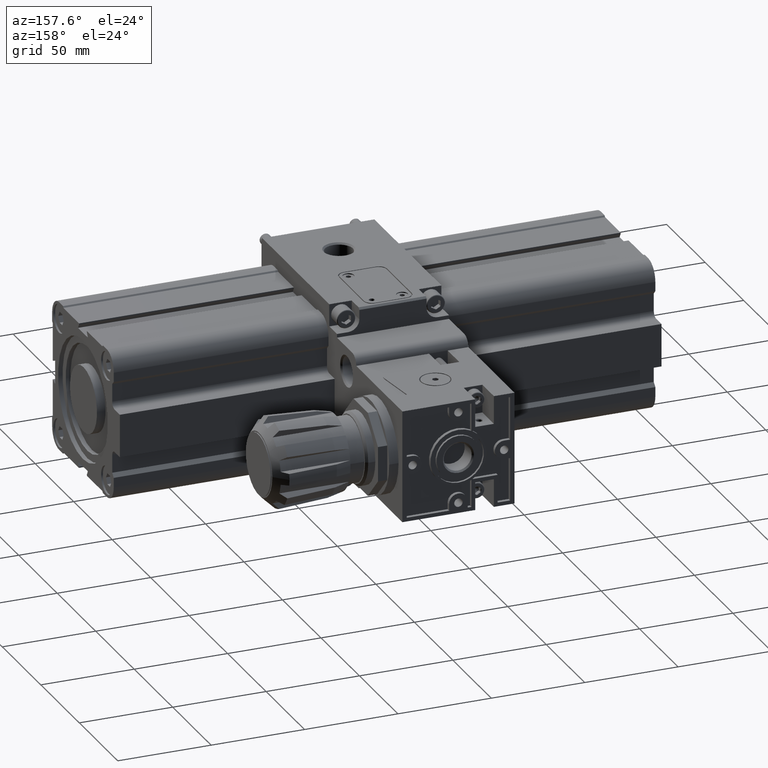
[diagram: clean part render]
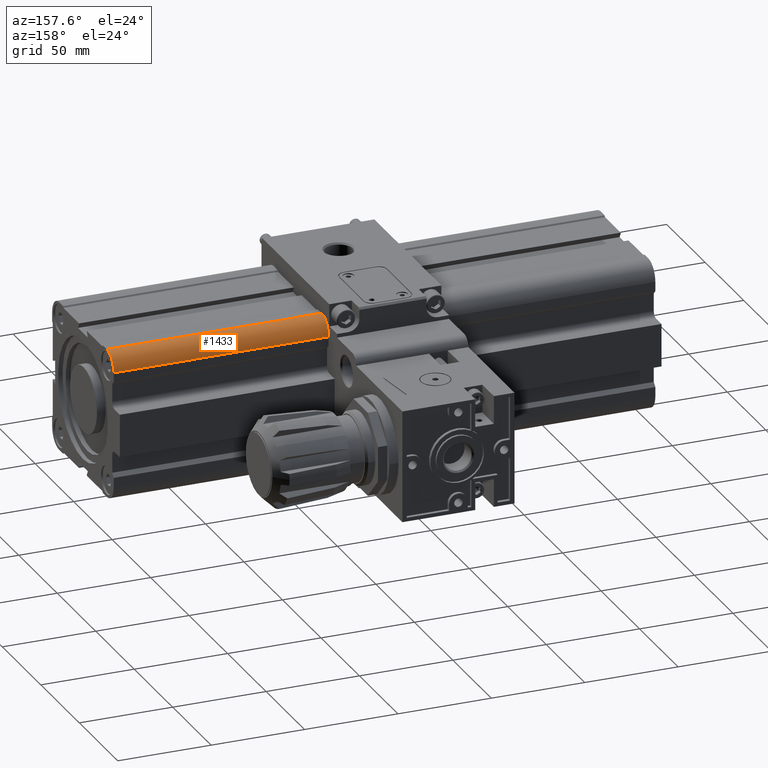
[diagram: same view with one face highlighted and labeled with its STEP entity id]
A machine part, auxiliary view. The second image highlights one B-rep face of the part: STEP entity #1433.
In plain terms, the highlighted cylindrical surface (edge-blend (fillet) strip) has radius 9 mm, axis along (1, 0, 0).
Its self-contained STEP definition (entity closure, byte-faithful):
#1433 = ADVANCED_FACE( '', ( #3275 ), #3276, .T. );
#3275 = FACE_OUTER_BOUND( '', #5658, .T. );
#3276 = CYLINDRICAL_SURFACE( '', #5659, 8.99999999999999 );
#5658 = EDGE_LOOP( '', ( #9263, #9264, #9265, #9266 ) );
#5659 = AXIS2_PLACEMENT_3D( '', #9267, #9268, #9269 );
#9263 = ORIENTED_EDGE( '', *, *, #14334, .T. );
#9264 = ORIENTED_EDGE( '', *, *, #14335, .F. );
#9265 = ORIENTED_EDGE( '', *, *, #14336, .F. );
#9266 = ORIENTED_EDGE( '', *, *, #14337, .T. );
#9267 = CARTESIAN_POINT( '', ( 145.000000000000, 31.0000000000000, 31.0000000000000 ) );
#9268 = DIRECTION( '', ( 1.00000000000000, -0.000000000000000, -0.000000000000000 ) );
#9269 = DIRECTION( '', ( 0.000000000000000, 0.000000000000000, 1.00000000000000 ) );
#14334 = EDGE_CURVE( '', #17393, #17394, #17395, .T. );
#14335 = EDGE_CURVE( '', #17396, #17394, #17397, .T. );
#14336 = EDGE_CURVE( '', #17398, #17396, #17399, .T. );
#14337 = EDGE_CURVE( '', #17398, #17393, #17400, .T. );
#17393 = VERTEX_POINT( '', #21576 );
#17394 = VERTEX_POINT( '', #21577 );
#17395 = CIRCLE( '', #21578, 8.99999999999999 );
#17396 = VERTEX_POINT( '', #21579 );
#17397 = LINE( '', #21580, #21581 );
#17398 = VERTEX_POINT( '', #21582 );
#17399 = CIRCLE( '', #21583, 8.99999999999999 );
#17400 = LINE( '', #21584, #21585 );
#21576 = CARTESIAN_POINT( '', ( 30.0000000000000, 40.0000000000000, 31.0000000000000 ) );
#21577 = CARTESIAN_POINT( '', ( 30.0000000000000, 31.0000000000000, 40.0000000000000 ) );
#21578 = AXIS2_PLACEMENT_3D( '', #24973, #24974, #24975 );
#21579 = CARTESIAN_POINT( '', ( 145.000000000000, 31.0000000000000, 40.0000000000000 ) );
#21580 = CARTESIAN_POINT( '', ( 145.000000000000, 31.0000000000000, 40.0000000000000 ) );
#21581 = VECTOR( '', #24976, 1000.00000000000 );
#21582 = CARTESIAN_POINT( '', ( 145.000000000000, 40.0000000000000, 31.0000000000000 ) );
#21583 = AXIS2_PLACEMENT_3D( '', #24977, #24978, #24979 );
#21584 = CARTESIAN_POINT( '', ( 145.000000000000, 40.0000000000000, 31.0000000000000 ) );
#21585 = VECTOR( '', #24980, 1000.00000000000 );
#24973 = CARTESIAN_POINT( '', ( 30.0000000000000, 31.0000000000000, 31.0000000000000 ) );
#24974 = DIRECTION( '', ( 1.00000000000000, 0.000000000000000, 0.000000000000000 ) );
#24975 = DIRECTION( '', ( 0.000000000000000, 0.000000000000000, -1.00000000000000 ) );
#24976 = DIRECTION( '', ( -1.00000000000000, -0.000000000000000, -0.000000000000000 ) );
#24977 = CARTESIAN_POINT( '', ( 145.000000000000, 31.0000000000000, 31.0000000000000 ) );
#24978 = DIRECTION( '', ( 1.00000000000000, 0.000000000000000, 0.000000000000000 ) );
#24979 = DIRECTION( '', ( 0.000000000000000, 0.000000000000000, -1.00000000000000 ) );
#24980 = DIRECTION( '', ( -1.00000000000000, -0.000000000000000, -0.000000000000000 ) );